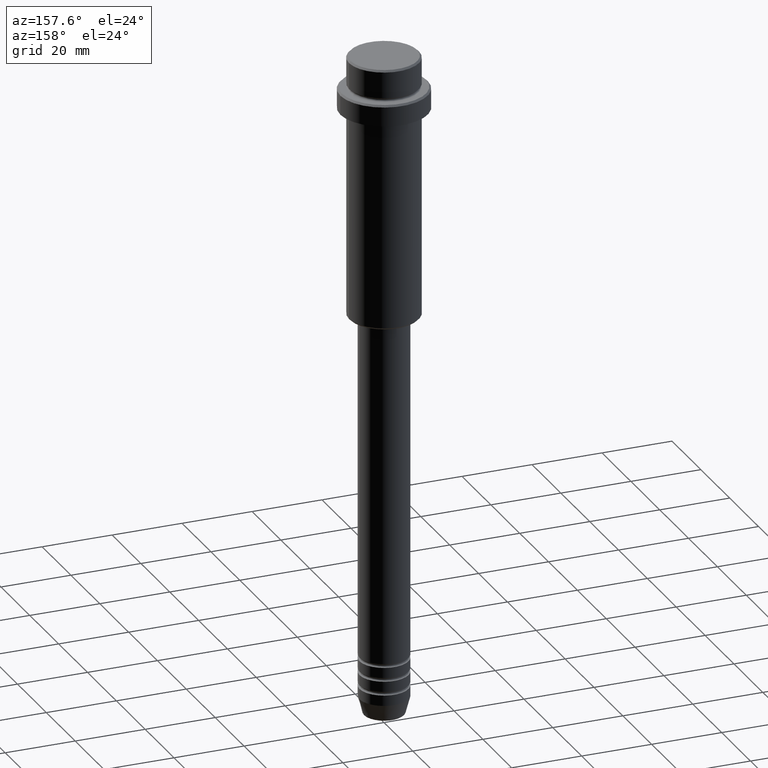
[diagram: clean part render]
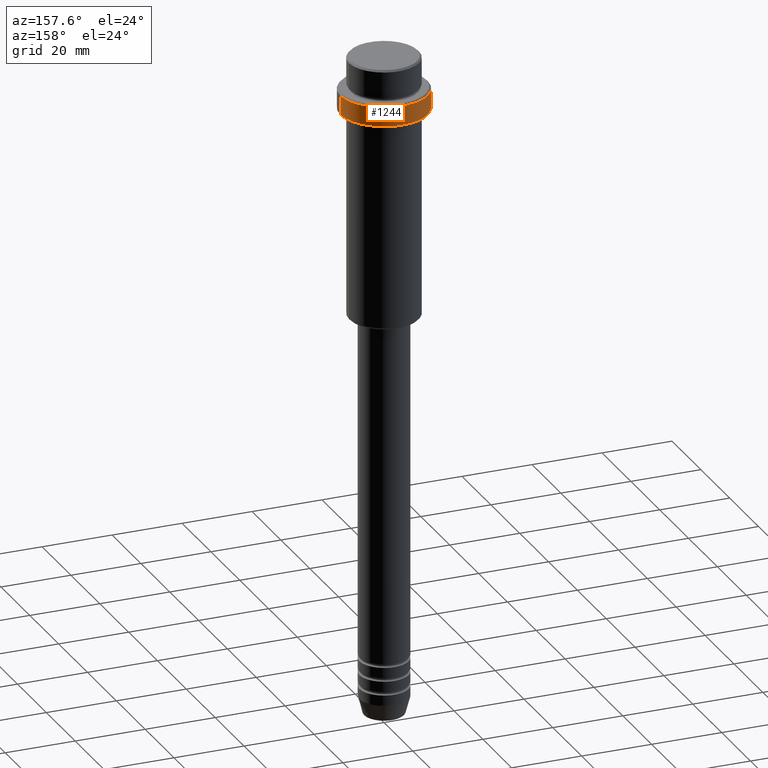
[diagram: same view with one face highlighted and labeled with its STEP entity id]
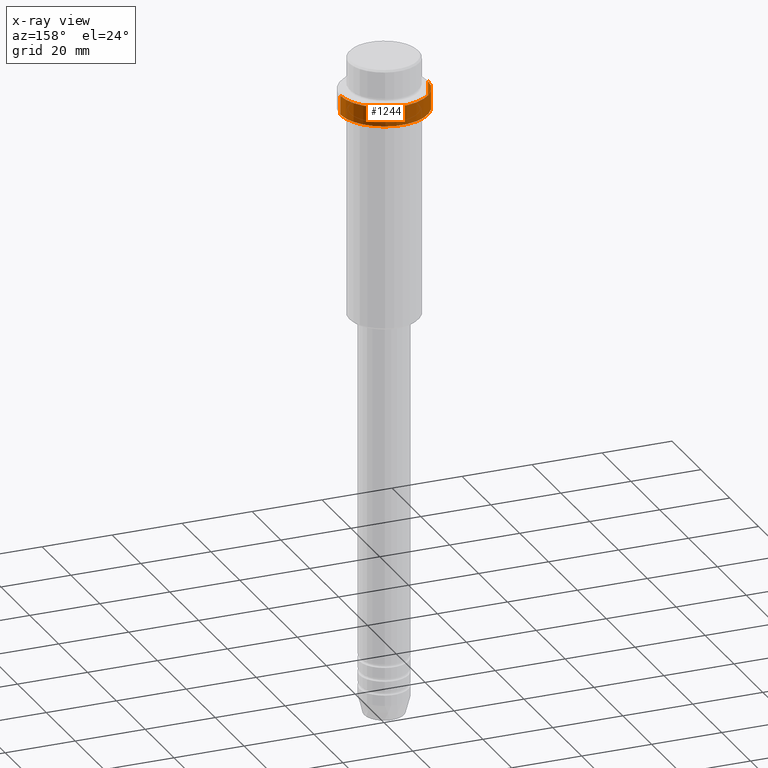
[diagram: x-ray of the same camera — body ghosted, the highlighted face saturated]
A machine part, auxiliary view. The second image highlights one B-rep face of the part: STEP entity #1244.
The next image is the same camera in x-ray: the body ghosted, the highlighted face saturated — about 0% of this face is hidden behind the body in this view.
In plain terms, the highlighted cylindrical surface (partial cylindrical patch) has radius 12.5 mm, axis along (-0, -0, 1).
Its self-contained STEP definition (entity closure, byte-faithful):
#97 = VERTEX_POINT ( 'NONE', #489 ) ;
#142 = EDGE_CURVE ( 'NONE', #1258, #97, #1265, .T. ) ;
#144 = ORIENTED_EDGE ( 'NONE', *, *, #739, .F. ) ;
#145 = DIRECTION ( 'NONE',  ( -0.000000000000000000, -0.000000000000000000, 1.000000000000000000 ) ) ;
#149 = CIRCLE ( 'NONE', #475, 12.50000000000000000 ) ;
#179 = EDGE_CURVE ( 'NONE', #303, #1371, #149, .T. ) ;
#266 = VECTOR ( 'NONE', #625, 1000.000000000000000 ) ;
#303 = VERTEX_POINT ( 'NONE', #1228 ) ;
#307 = DIRECTION ( 'NONE',  ( -0.000000000000000000, -0.000000000000000000, 1.000000000000000000 ) ) ;
#372 = EDGE_CURVE ( 'NONE', #1371, #1258, #994, .T. ) ;
#425 = ORIENTED_EDGE ( 'NONE', *, *, #179, .T. ) ;
#437 = CARTESIAN_POINT ( 'NONE',  ( -12.50000000000000000, 1.530808498934191521E-15, 0.000000000000000000 ) ) ;
#475 = AXIS2_PLACEMENT_3D ( 'NONE', #1387, #307, #738 ) ;
#489 = CARTESIAN_POINT ( 'NONE',  ( 12.50000000000000000, 0.000000000000000000, -9.500000000000007105 ) ) ;
#537 = AXIS2_PLACEMENT_3D ( 'NONE', #1260, #629, #616 ) ;
#616 = DIRECTION ( 'NONE',  ( 1.000000000000000000, 0.000000000000000000, 0.000000000000000000 ) ) ;
#625 = DIRECTION ( 'NONE',  ( -0.000000000000000000, -0.000000000000000000, 1.000000000000000000 ) ) ;
#629 = DIRECTION ( 'NONE',  ( 0.000000000000000000, 0.000000000000000000, -1.000000000000000000 ) ) ;
#649 = CARTESIAN_POINT ( 'NONE',  ( 12.50000000000000000, 0.000000000000000000, 0.000000000000000000 ) ) ;
#726 = CARTESIAN_POINT ( 'NONE',  ( -12.50000000000000000, 1.530808498934191521E-15, -15.00000000000000178 ) ) ;
#738 = DIRECTION ( 'NONE',  ( 1.000000000000000000, 0.000000000000000000, 0.000000000000000000 ) ) ;
#739 = EDGE_CURVE ( 'NONE', #303, #97, #1174, .T. ) ;
#780 = VECTOR ( 'NONE', #879, 1000.000000000000000 ) ;
#813 = AXIS2_PLACEMENT_3D ( 'NONE', #930, #145, #1363 ) ;
#873 = EDGE_LOOP ( 'NONE', ( #425, #1330, #1172, #144 ) ) ;
#879 = DIRECTION ( 'NONE',  ( -0.000000000000000000, -0.000000000000000000, 1.000000000000000000 ) ) ;
#930 = CARTESIAN_POINT ( 'NONE',  ( 0.000000000000000000, 0.000000000000000000, 0.000000000000000000 ) ) ;
#994 = LINE ( 'NONE', #437, #780 ) ;
#1149 = FACE_OUTER_BOUND ( 'NONE', #873, .T. ) ;
#1172 = ORIENTED_EDGE ( 'NONE', *, *, #142, .T. ) ;
#1174 = LINE ( 'NONE', #649, #266 ) ;
#1228 = CARTESIAN_POINT ( 'NONE',  ( 12.50000000000000000, 0.000000000000000000, -15.00000000000000178 ) ) ;
#1244 = ADVANCED_FACE ( 'NONE', ( #1149 ), #1373, .T. ) ;
#1258 = VERTEX_POINT ( 'NONE', #1263 ) ;
#1260 = CARTESIAN_POINT ( 'NONE',  ( 0.000000000000000000, 0.000000000000000000, -9.500000000000007105 ) ) ;
#1263 = CARTESIAN_POINT ( 'NONE',  ( -12.50000000000000000, 1.530808498934191521E-15, -9.500000000000007105 ) ) ;
#1265 = CIRCLE ( 'NONE', #537, 12.50000000000000000 ) ;
#1330 = ORIENTED_EDGE ( 'NONE', *, *, #372, .T. ) ;
#1363 = DIRECTION ( 'NONE',  ( 1.000000000000000000, 0.000000000000000000, 0.000000000000000000 ) ) ;
#1371 = VERTEX_POINT ( 'NONE', #726 ) ;
#1373 = CYLINDRICAL_SURFACE ( 'NONE', #813, 12.50000000000000000 ) ;
#1387 = CARTESIAN_POINT ( 'NONE',  ( 0.000000000000000000, 0.000000000000000000, -15.00000000000000178 ) ) ;